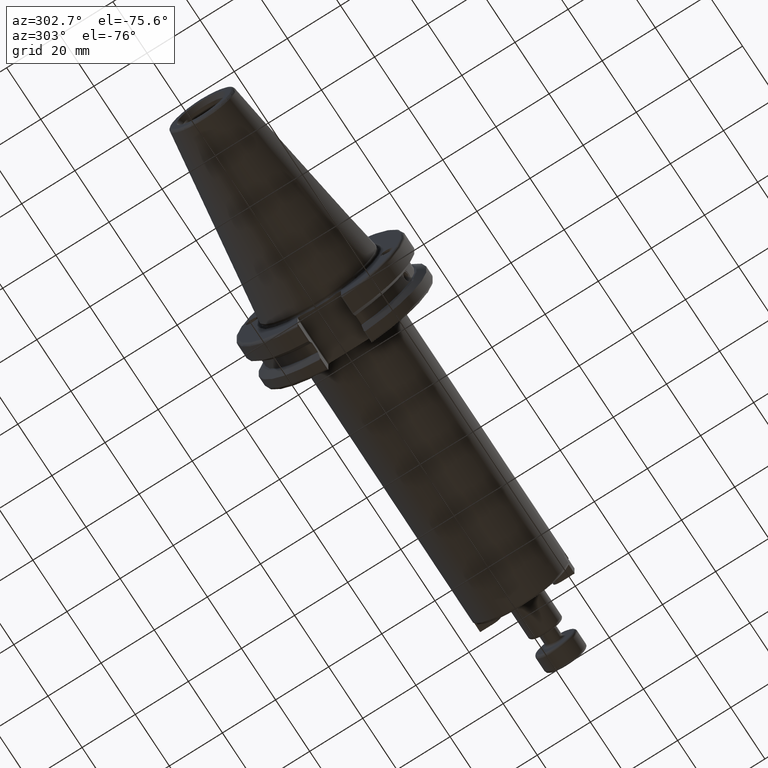
[diagram: clean part render]
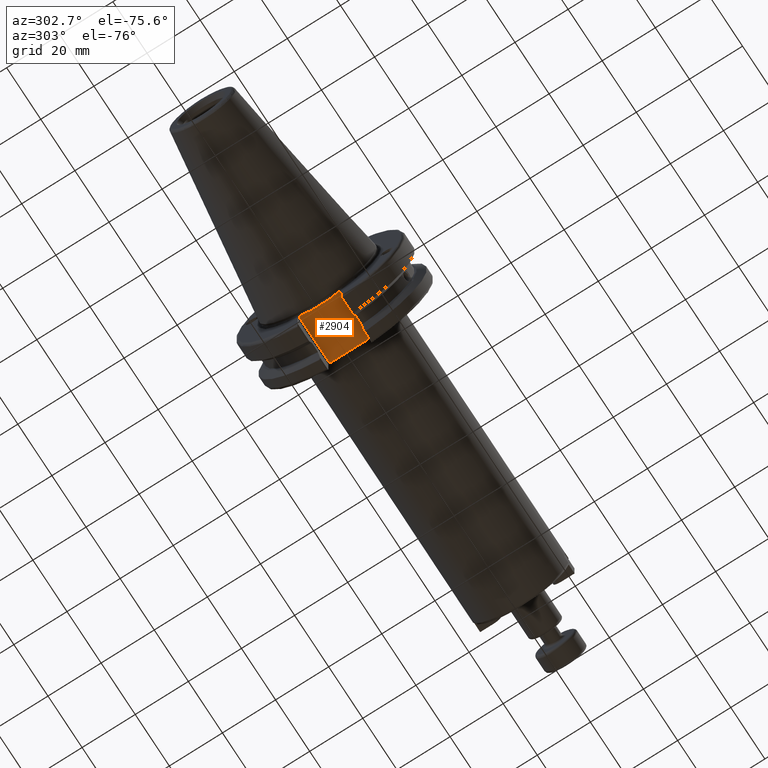
[diagram: same view with one face highlighted and labeled with its STEP entity id]
A machine part, auxiliary view. The second image highlights one B-rep face of the part: STEP entity #2904.
In plain terms, the highlighted planar face has unit normal (0, 0, 1).
Its self-contained STEP definition (entity closure, byte-faithful):
#68=(
BOUNDED_CURVE()
B_SPLINE_CURVE(2,(#5309,#5310,#5311),.UNSPECIFIED.,.F.,.F.)
B_SPLINE_CURVE_WITH_KNOTS((3,3),(0.,0.339841691449478),.UNSPECIFIED.)
CURVE()
GEOMETRIC_REPRESENTATION_ITEM()
RATIONAL_B_SPLINE_CURVE((1.,1.00266518417081,1.))
REPRESENTATION_ITEM('')
);
#69=(
BOUNDED_CURVE()
B_SPLINE_CURVE(2,(#5314,#5315,#5316),.UNSPECIFIED.,.F.,.F.)
B_SPLINE_CURVE_WITH_KNOTS((3,3),(0.,0.339841691449478),.UNSPECIFIED.)
CURVE()
GEOMETRIC_REPRESENTATION_ITEM()
RATIONAL_B_SPLINE_CURVE((1.,1.00266518417081,1.))
REPRESENTATION_ITEM('')
);
#316=FACE_OUTER_BOUND('',#487,.T.);
#487=EDGE_LOOP('',(#2354,#2355,#2356,#2357,#2358,#2359,#2360,#2361));
#609=LINE('',#4668,#783);
#666=LINE('',#5273,#840);
#667=LINE('',#5277,#841);
#671=LINE('',#5305,#845);
#672=LINE('',#5307,#846);
#673=LINE('',#5313,#847);
#783=VECTOR('',#3639,10.);
#840=VECTOR('',#3928,10.);
#841=VECTOR('',#3931,10.);
#845=VECTOR('',#3965,10.);
#846=VECTOR('',#3968,10.);
#847=VECTOR('',#3969,10.);
#1182=VERTEX_POINT('',#4665);
#1183=VERTEX_POINT('',#4667);
#1304=VERTEX_POINT('',#5270);
#1305=VERTEX_POINT('',#5272);
#1306=VERTEX_POINT('',#5274);
#1307=VERTEX_POINT('',#5276);
#1317=VERTEX_POINT('',#5308);
#1318=VERTEX_POINT('',#5312);
#1513=EDGE_CURVE('',#1182,#1183,#609,.T.);
#1682=EDGE_CURVE('',#1304,#1305,#666,.T.);
#1684=EDGE_CURVE('',#1306,#1307,#667,.T.);
#1698=EDGE_CURVE('',#1183,#1304,#671,.T.);
#1699=EDGE_CURVE('',#1307,#1182,#672,.T.);
#1700=EDGE_CURVE('',#1317,#1306,#68,.T.);
#1701=EDGE_CURVE('',#1318,#1317,#673,.T.);
#1702=EDGE_CURVE('',#1305,#1318,#69,.T.);
#2354=ORIENTED_EDGE('',*,*,#1698,.F.);
#2355=ORIENTED_EDGE('',*,*,#1513,.F.);
#2356=ORIENTED_EDGE('',*,*,#1699,.F.);
#2357=ORIENTED_EDGE('',*,*,#1684,.F.);
#2358=ORIENTED_EDGE('',*,*,#1700,.F.);
#2359=ORIENTED_EDGE('',*,*,#1701,.F.);
#2360=ORIENTED_EDGE('',*,*,#1702,.F.);
#2361=ORIENTED_EDGE('',*,*,#1682,.F.);
#2781=PLANE('',#3287);
#2904=ADVANCED_FACE('',(#316),#2781,.F.);
#3287=AXIS2_PLACEMENT_3D('',#5306,#3966,#3967);
#3639=DIRECTION('',(0.,1.,0.));
#3928=DIRECTION('',(0.,-1.,0.));
#3931=DIRECTION('',(0.,-1.,0.));
#3965=DIRECTION('',(-1.,-1.16558847729675E-16,0.));
#3966=DIRECTION('center_axis',(0.,0.,1.));
#3967=DIRECTION('ref_axis',(1.,0.,0.));
#3968=DIRECTION('',(1.,0.,0.));
#3969=DIRECTION('',(0.,-1.,0.));
#4665=CARTESIAN_POINT('',(19.05,-7.69,-22.6));
#4667=CARTESIAN_POINT('',(19.05,7.69,-22.6));
#4668=CARTESIAN_POINT('',(19.05,-2.77555756156289E-16,-22.6));
#5270=CARTESIAN_POINT('',(1.,7.69,-22.6));
#5272=CARTESIAN_POINT('',(0.999999999999997,6.4412731660752,-22.6));
#5273=CARTESIAN_POINT('',(1.,15.875,-22.6));
#5274=CARTESIAN_POINT('',(1.,-6.44127316607517,-22.6));
#5276=CARTESIAN_POINT('',(1.,-7.69,-22.6));
#5277=CARTESIAN_POINT('',(1.,15.875,-22.6));
#5305=CARTESIAN_POINT('',(7.81,7.69,-22.6));
#5306=CARTESIAN_POINT('Origin',(14.62,-5.55111512312578E-16,-22.6));
#5307=CARTESIAN_POINT('',(17.335,-7.69,-22.6));
#5308=CARTESIAN_POINT('',(1.4,-3.06715581894774,-22.6));
#5309=CARTESIAN_POINT('Ctrl Pts',(1.4,-3.06715581894779,-22.6));
#5310=CARTESIAN_POINT('Ctrl Pts',(1.27097107950098,-4.7289737297758,-22.6));
#5311=CARTESIAN_POINT('Ctrl Pts',(1.,-6.44127316607519,-22.6));
#5312=CARTESIAN_POINT('',(1.4,3.06715581894774,-22.6));
#5313=CARTESIAN_POINT('',(1.4,11.4035898384862,-22.6));
#5314=CARTESIAN_POINT('Ctrl Pts',(1.,6.44127316607519,-22.6));
#5315=CARTESIAN_POINT('Ctrl Pts',(1.27097107950098,4.7289737297758,-22.6));
#5316=CARTESIAN_POINT('Ctrl Pts',(1.4,3.06715581894779,-22.6));